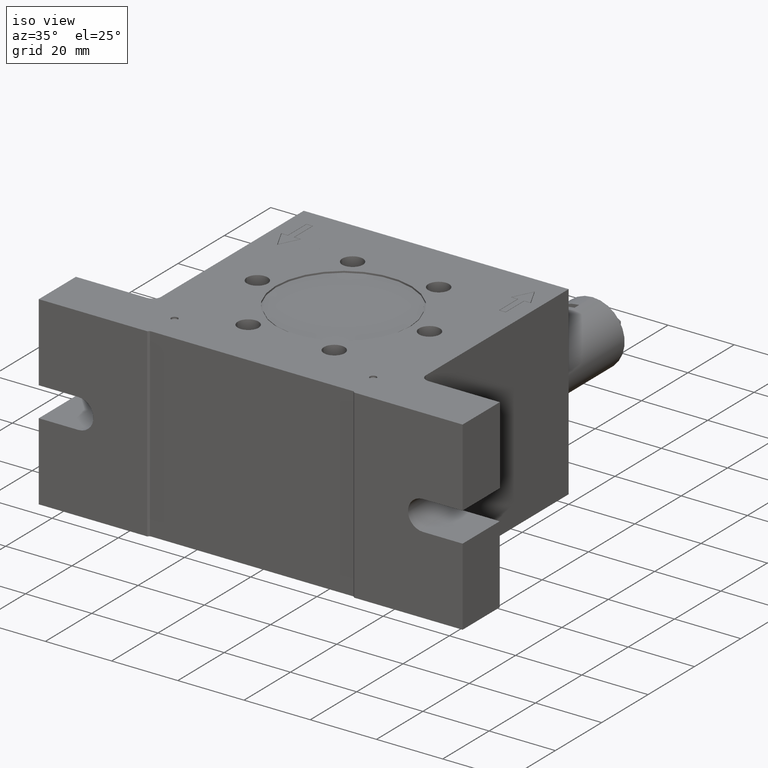
[diagram: clean part render]
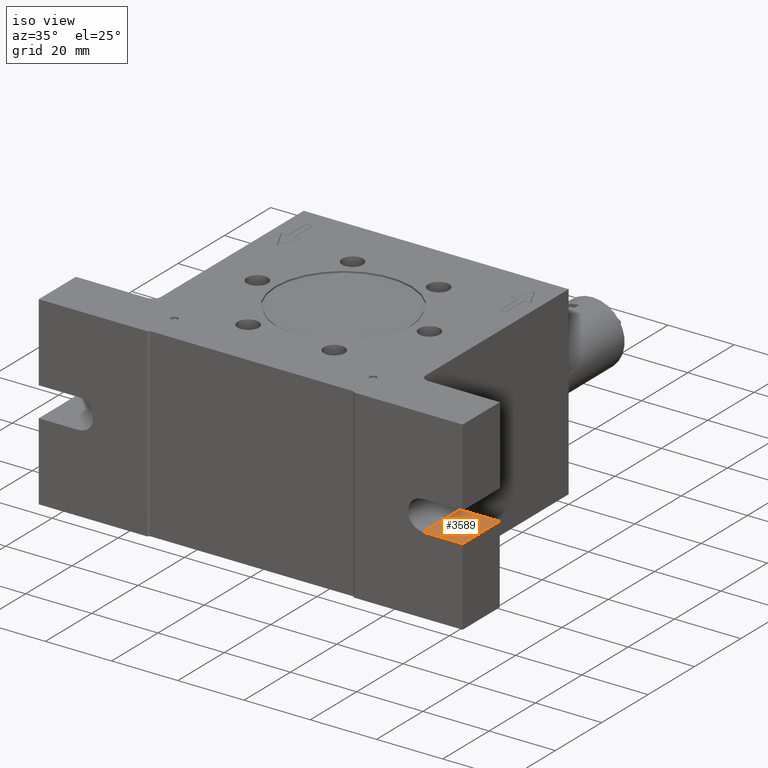
[diagram: same view with one face highlighted and labeled with its STEP entity id]
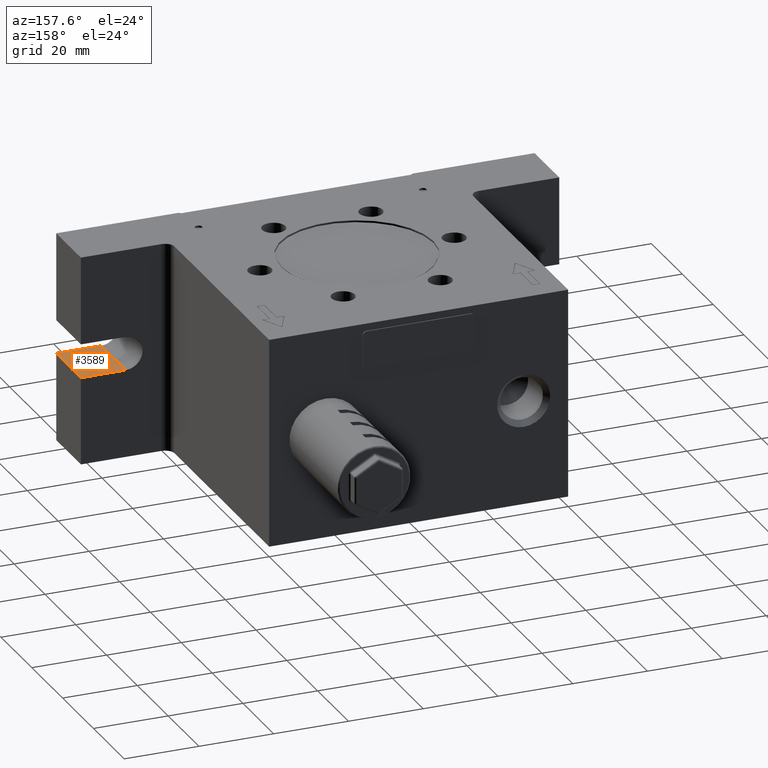
[diagram: same view with one face highlighted and labeled with its STEP entity id]
A machine part, iso view. The second image highlights one B-rep face of the part: STEP entity #3589.
A second angle (auxiliary view) of the same face is appended — the face is thin or edge-on in the first view.
In plain terms, the highlighted planar face has unit normal (-0, 0, -1).
Its self-contained STEP definition (entity closure, byte-faithful):
#946 = EDGE_CURVE ( 'NONE', #4800, #21544, #11269, .T. ) ;
#1557 = VERTEX_POINT ( 'NONE', #6654 ) ;
#2250 = EDGE_CURVE ( 'NONE', #2891, #4800, #11753, .T. ) ;
#2321 = VECTOR ( 'NONE', #11040, 1000.000000000000000 ) ;
#2627 = AXIS2_PLACEMENT_3D ( 'NONE', #15810, #5745, #19008 ) ;
#2891 = VERTEX_POINT ( 'NONE', #13615 ) ;
#3238 = LINE ( 'NONE', #4030, #20072 ) ;
#3589 = ADVANCED_FACE ( 'NONE', ( #13746 ), #12438, .F. ) ;
#3645 = ORIENTED_EDGE ( 'NONE', *, *, #16509, .T. ) ;
#3685 = DIRECTION ( 'NONE',  ( -1.000000000000000000, 0.0000000000000000000, 6.505213034913019700E-016 ) ) ;
#4030 = CARTESIAN_POINT ( 'NONE',  ( 64.00000000000000000, -24.00000000000000000, -4.500000000000000000 ) ) ;
#4324 = VECTOR ( 'NONE', #4977, 1000.000000000000000 ) ;
#4800 = VERTEX_POINT ( 'NONE', #5252 ) ;
#4977 = DIRECTION ( 'NONE',  ( 0.0000000000000000000, 1.000000000000000000, 0.0000000000000000000 ) ) ;
#5252 = CARTESIAN_POINT ( 'NONE',  ( 52.00000000000000000, -40.00000000000000000, -4.500000000000000000 ) ) ;
#5745 = DIRECTION ( 'NONE',  ( -6.505213034913019700E-016, 0.0000000000000000000, -1.000000000000000000 ) ) ;
#6654 = CARTESIAN_POINT ( 'NONE',  ( 64.00000000000000000, -24.00000000000000000, -4.500000000000000000 ) ) ;
#8963 = EDGE_CURVE ( 'NONE', #2891, #1557, #10598, .T. ) ;
#9467 = EDGE_LOOP ( 'NONE', ( #3645, #21802, #11105, #13783 ) ) ;
#10294 = CARTESIAN_POINT ( 'NONE',  ( 64.00000000000000000, -40.00000000000000000, -4.500000000000000000 ) ) ;
#10598 = LINE ( 'NONE', #20069, #4324 ) ;
#11040 = DIRECTION ( 'NONE',  ( 0.0000000000000000000, 1.000000000000000000, 0.0000000000000000000 ) ) ;
#11105 = ORIENTED_EDGE ( 'NONE', *, *, #2250, .F. ) ;
#11269 = LINE ( 'NONE', #12655, #2321 ) ;
#11753 = LINE ( 'NONE', #10294, #17273 ) ;
#12438 = PLANE ( 'NONE',  #2627 ) ;
#12655 = CARTESIAN_POINT ( 'NONE',  ( 52.00000000000000000, -40.00000000000000000, -4.500000000000000000 ) ) ;
#13615 = CARTESIAN_POINT ( 'NONE',  ( 64.00000000000000000, -40.00000000000000000, -4.500000000000000000 ) ) ;
#13746 = FACE_OUTER_BOUND ( 'NONE', #9467, .T. ) ;
#13783 = ORIENTED_EDGE ( 'NONE', *, *, #8963, .T. ) ;
#15810 = CARTESIAN_POINT ( 'NONE',  ( 64.00000000000000000, -40.00000000000000000, -4.500000000000000000 ) ) ;
#16509 = EDGE_CURVE ( 'NONE', #1557, #21544, #3238, .T. ) ;
#17273 = VECTOR ( 'NONE', #3685, 1000.000000000000000 ) ;
#17778 = DIRECTION ( 'NONE',  ( -1.000000000000000000, 0.0000000000000000000, 6.505213034913019700E-016 ) ) ;
#19008 = DIRECTION ( 'NONE',  ( -1.000000000000000000, 0.0000000000000000000, 6.505213034913019700E-016 ) ) ;
#20069 = CARTESIAN_POINT ( 'NONE',  ( 64.00000000000000000, -40.00000000000000000, -4.500000000000000000 ) ) ;
#20072 = VECTOR ( 'NONE', #17778, 1000.000000000000000 ) ;
#20337 = CARTESIAN_POINT ( 'NONE',  ( 52.00000000000000000, -24.00000000000000000, -4.500000000000000000 ) ) ;
#21544 = VERTEX_POINT ( 'NONE', #20337 ) ;
#21802 = ORIENTED_EDGE ( 'NONE', *, *, #946, .F. ) ;